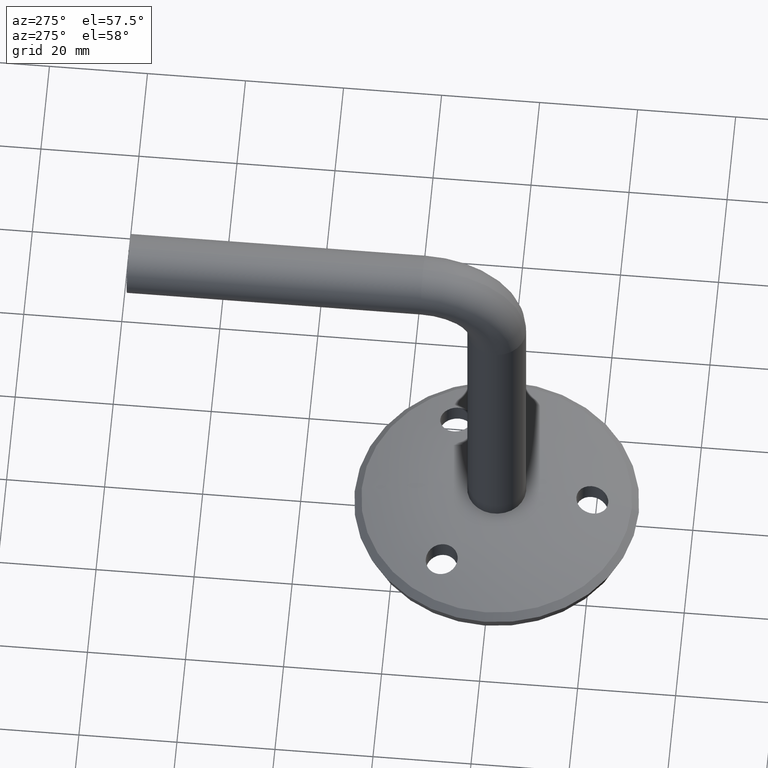
[diagram: clean part render]
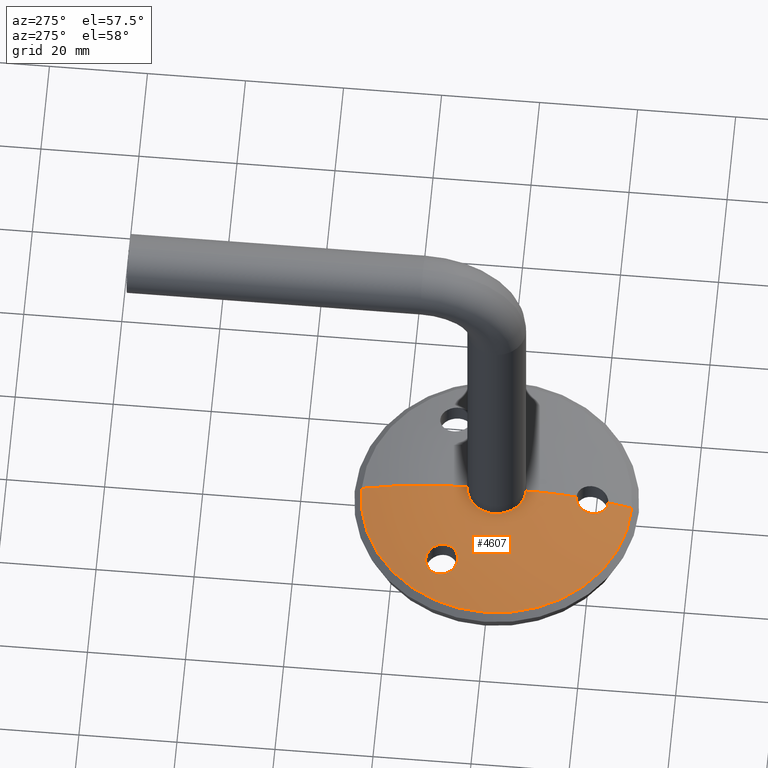
[diagram: same view with one face highlighted and labeled with its STEP entity id]
A machine part, auxiliary view. The second image highlights one B-rep face of the part: STEP entity #4607.
In plain terms, the highlighted toroidal blend (fillet) surface has major radius 5.25 mm and minor (blend) radius 70.5081 mm.
Its self-contained STEP definition (entity closure, byte-faithful):
#73 = CARTESIAN_POINT ( 'NONE',  ( -14.92076493267558313, 6.572789844037355778, -12.34597898326365595 ) ) ;
#559 = ORIENTED_EDGE ( 'NONE', *, *, #9891, .T. ) ;
#663 = CARTESIAN_POINT ( 'NONE',  ( -3.166677742492574055, 6.662795183297255619, 18.65648535947543607 ) ) ;
#739 = CARTESIAN_POINT ( 'NONE',  ( -17.93120958819713451, 5.969181775287405678, -12.83522427435549318 ) ) ;
#826 = CARTESIAN_POINT ( 'NONE',  ( -19.03625999361851484, 5.829979597320061657, -12.19788801209112705 ) ) ;
#873 = VERTEX_POINT ( 'NONE', #1020 ) ;
#898 = CARTESIAN_POINT ( 'NONE',  ( 3.373901931650957986E-15, 4.380627137030746354, 27.54999999999999716 ) ) ;
#960 = DIRECTION ( 'NONE',  ( -1.000000000000000000, 0.000000000000000000, 0.000000000000000000 ) ) ;
#966 = CARTESIAN_POINT ( 'NONE',  ( -16.88749537381466581, 6.146212153112459831, -12.99999999999999467 ) ) ;
#1011 = CARTESIAN_POINT ( 'NONE',  ( -13.75000288717430585, 6.949723699065288862, -10.62388374986598016 ) ) ;
#1020 = CARTESIAN_POINT ( 'NONE',  ( 1.992262963256047854E-15, 7.136656318735704829, 16.24999999999999645 ) ) ;
#1206 = CARTESIAN_POINT ( 'NONE',  ( -14.45827733477081445, 6.698212812521322057, -11.91922808120207300 ) ) ;
#1335 = B_SPLINE_CURVE_WITH_KNOTS ( 'NONE', 3,
 ( #4920, #1690, #6008, #12728, #5107, #7305, #8310, #6204, #3816, #5060, #11577, #12770, #6059, #9458, #13940, #6161, #13756, #1600, #663, #3954, #7123, #13890, #3860, #10479, #4969, #6104, #12814, #12620, #12675, #1551 ),
 .UNSPECIFIED., .F., .F.,
 ( 4, 2, 2, 2, 2, 2, 2, 2, 2, 2, 2, 2, 2, 2, 4 ),
 ( 0.01461833646250698324, 0.01525996222272465661, 0.01590158798294232997, 0.01654321374316000681, 0.01718483950337768018, 0.01782646526359535355, 0.01846809102381302692, 0.01910971678403070029, 0.01975134254424837713, 0.02103459406468373427, 0.02231784558511909142, 0.02295947134533677519, 0.02360109710555445550, 0.02424272286577213928, 0.02488434862598981959 ),
 .UNSPECIFIED. ) ;
#1354 = CARTESIAN_POINT ( 'NONE',  ( -13.79597766813787452, 7.125284141914178804, -8.724564337970335259 ) ) ;
#1441 = CARTESIAN_POINT ( 'NONE',  ( 2.008420750601658165E-15, 8.000000000000000000, 5.250000000000000000 ) ) ;
#1551 = CARTESIAN_POINT ( 'NONE',  ( 1.992262963256047854E-15, 7.136656318735704829, 16.24999999999999645 ) ) ;
#1600 = CARTESIAN_POINT ( 'NONE',  ( -3.250604130810204939, 6.575917868337124439, 19.08099595883461674 ) ) ;
#1690 = CARTESIAN_POINT ( 'NONE',  ( -0.2147862826052898411, 5.793744438677607356, 22.75000000000000711 ) ) ;
#1713 = AXIS2_PLACEMENT_3D ( 'NONE', #2620, #9157, #7845 ) ;
#1807 = CARTESIAN_POINT ( 'NONE',  ( -20.02467087558884629, 6.005396747237801591, -8.875025197481276606 ) ) ;
#1852 = CARTESIAN_POINT ( 'NONE',  ( -18.87099154800128176, 5.846498663725057554, -12.33334249040133024 ) ) ;
#1863 = CARTESIAN_POINT ( 'NONE',  ( 0.000000000000000000, 8.000000000000000000, -5.250000000000000000 ) ) ;
#2003 = DIRECTION ( 'NONE',  ( -0.000000000000000000, -1.000000000000000000, -0.000000000000000000 ) ) ;
#2253 = DIRECTION ( 'NONE',  ( -0.000000000000000000, -1.000000000000000000, -0.000000000000000000 ) ) ;
#2406 = B_SPLINE_CURVE_WITH_KNOTS ( 'NONE', 3,
 ( #6739, #12100, #6690, #13155, #6583, #9939, #9990, #73, #7846, #1206, #8948, #12148, #10943, #8755, #1011, #5486, #5528, #13254, #11281, #10283, #1354, #4577, #10086, #12469, #13457, #10140, #2411, #11389, #13504, #3457, #6888, #3558, #12286, #9152 ),
 .UNSPECIFIED., .F., .F.,
 ( 4, 2, 2, 2, 2, 2, 2, 2, 2, 2, 2, 2, 2, 2, 2, 2, 4 ),
 ( 0.002592582207815472689, 0.003234283589836495741, 0.003875984971857518360, 0.004517686353878540978, 0.005159387735899564030, 0.005801089117920587082, 0.006442790499941609267, 0.007084491881962632319, 0.007726193263983655371, 0.008367894646004677556, 0.009009596028025701475, 0.009651297410046723660, 0.01029299879206774238, 0.01093470017408876456, 0.01157640155610978501, 0.01221810293813080546, 0.01285980432015182591 ),
 .UNSPECIFIED. ) ;
#2411 = CARTESIAN_POINT ( 'NONE',  ( -14.90043892189490471, 7.091230476169230634, -7.169218788099881223 ) ) ;
#2620 = CARTESIAN_POINT ( 'NONE',  ( 6.429395695523604153E-16, -62.50805198092858461, 5.250000000000000000 ) ) ;
#2928 = CARTESIAN_POINT ( 'NONE',  ( -20.13938038033285238, 5.868821188330352712, -9.932309515252411458 ) ) ;
#3075 = DIRECTION ( 'NONE',  ( 0.000000000000000000, 0.000000000000000000, -1.000000000000000000 ) ) ;
#3213 = DIRECTION ( 'NONE',  ( -0.000000000000000000, -1.000000000000000000, -0.000000000000000000 ) ) ;
#3224 = DIRECTION ( 'NONE',  ( 0.000000000000000000, 0.000000000000000000, -1.000000000000000000 ) ) ;
#3240 = DIRECTION ( 'NONE',  ( 1.000000000000000000, 0.000000000000000000, -1.224646799147353207E-16 ) ) ;
#3295 = ORIENTED_EDGE ( 'NONE', *, *, #6918, .T. ) ;
#3335 = AXIS2_PLACEMENT_3D ( 'NONE', #13145, #3240, #8888 ) ;
#3457 = CARTESIAN_POINT ( 'NONE',  ( -15.84109508301126468, 6.982569746815600276, -6.665731233034376757 ) ) ;
#3500 = ORIENTED_EDGE ( 'NONE', *, *, #7177, .F. ) ;
#3558 = CARTESIAN_POINT ( 'NONE',  ( -16.46581134939877344, 6.890652708540771165, -6.520404047833941341 ) ) ;
#3592 = EDGE_CURVE ( 'NONE', #10246, #13115, #6559, .T. ) ;
#3816 = CARTESIAN_POINT ( 'NONE',  ( -2.159365237915294333, 5.971006935869962895, 21.93813012095986892 ) ) ;
#3860 = CARTESIAN_POINT ( 'NONE',  ( -1.994692732258120715, 7.007152888528025869, 16.92522485003031463 ) ) ;
#3932 = EDGE_LOOP ( 'NONE', ( #14394, #6018, #6037, #3500, #4492, #3295 ) ) ;
#3954 = CARTESIAN_POINT ( 'NONE',  ( -2.847666753398638395, 6.819799524599233109, 17.87822352490695366 ) ) ;
#3973 = CARTESIAN_POINT ( 'NONE',  ( -17.92734521113940005, 6.621507180969622652, -6.663615851072540508 ) ) ;
#4022 = CARTESIAN_POINT ( 'NONE',  ( -18.31783265609580269, 6.535477613177278933, -6.824048862705085483 ) ) ;
#4025 = CARTESIAN_POINT ( 'NONE',  ( 0.000000000000000000, 4.380627137030746354, -27.54999999999999716 ) ) ;
#4371 = VERTEX_POINT ( 'NONE', #1863 ) ;
#4492 = ORIENTED_EDGE ( 'NONE', *, *, #3592, .F. ) ;
#4567 = DIRECTION ( 'NONE',  ( 0.000000000000000000, 0.000000000000000000, -1.000000000000000000 ) ) ;
#4577 = CARTESIAN_POINT ( 'NONE',  ( -13.95855796168041074, 7.136466421701153529, -8.325105036408045223 ) ) ;
#4607 = ADVANCED_FACE ( 'NONE', ( #13649, #12590 ), #4670, .T. ) ;
#4670 = TOROIDAL_SURFACE ( 'NONE', #9429, 5.250000000000000000, 70.50805198092858461 ) ;
#4753 = VERTEX_POINT ( 'NONE', #6757 ) ;
#4920 = CARTESIAN_POINT ( 'NONE',  ( -4.609694209175250853E-14, 5.793744438677357778, 22.75000000000109779 ) ) ;
#4969 = CARTESIAN_POINT ( 'NONE',  ( -1.452592685227002800, 7.072825445408654765, 16.58481927285588142 ) ) ;
#5060 = CARTESIAN_POINT ( 'NONE',  ( -2.457469596971434633, 6.036106627857236617, 21.63733008620797449 ) ) ;
#5107 = CARTESIAN_POINT ( 'NONE',  ( -1.057431236929632590, 5.830921314657634191, 22.58055756177896001 ) ) ;
#5167 = CARTESIAN_POINT ( 'NONE',  ( -19.73738698471576569, 5.787608313314743569, -11.36976278019478137 ) ) ;
#5217 = CARTESIAN_POINT ( 'NONE',  ( -17.31208745922365111, 6.069546518262995960, -12.97913139807166338 ) ) ;
#5267 = CARTESIAN_POINT ( 'NONE',  ( -19.45595272687833699, 6.232001335927177976, -7.747591253170829972 ) ) ;
#5388 = DIRECTION ( 'NONE',  ( 0.000000000000000000, 0.000000000000000000, 1.000000000000000000 ) ) ;
#5486 = CARTESIAN_POINT ( 'NONE',  ( -13.66300674071431587, 7.004931552799104288, -10.20848115230000808 ) ) ;
#5528 = CARTESIAN_POINT ( 'NONE',  ( -13.63975360178866403, 7.029294195318215088, -9.997052937679622886 ) ) ;
#6008 = CARTESIAN_POINT ( 'NONE',  ( -0.4276443912627497235, 5.798377057814571245, 22.72891537535806350 ) ) ;
#6018 = ORIENTED_EDGE ( 'NONE', *, *, #6050, .T. ) ;
#6037 = ORIENTED_EDGE ( 'NONE', *, *, #8469, .T. ) ;
#6050 = EDGE_CURVE ( 'NONE', #12673, #4371, #8424, .T. ) ;
#6059 = CARTESIAN_POINT ( 'NONE',  ( -2.925324134352727867, 6.187612174745771298, 20.93161279124760199 ) ) ;
#6104 = CARTESIAN_POINT ( 'NONE',  ( -1.057765374599709096, 7.104450353168404675, 16.41950708597058295 ) ) ;
#6161 = CARTESIAN_POINT ( 'NONE',  ( -3.228880333792092383, 6.400380584981661514, 19.92519417397171821 ) ) ;
#6204 = CARTESIAN_POINT ( 'NONE',  ( -1.996075206246976874, 5.941531170650627303, 22.07379021109564832 ) ) ;
#6222 = CARTESIAN_POINT ( 'NONE',  ( -19.32121732681181570, 6.273960264196771774, -7.585603255210444651 ) ) ;
#6273 = CARTESIAN_POINT ( 'NONE',  ( -19.49469659803568788, 5.793339938569650016, -11.73805991380500835 ) ) ;
#6543 = CARTESIAN_POINT ( 'NONE',  ( -17.09808489436565182, 6.107172339728258237, -12.99999999999882760 ) ) ;
#6559 = CIRCLE ( 'NONE', #1713, 70.50805198092858461 ) ;
#6583 = CARTESIAN_POINT ( 'NONE',  ( -15.84895660917657878, 6.354479903823975206, -12.83671491261489450 ) ) ;
#6663 = EDGE_CURVE ( 'NONE', #4753, #10446, #11065, .T. ) ;
#6690 = CARTESIAN_POINT ( 'NONE',  ( -16.46751255589565943, 6.226057270874720828, -12.97973465348839284 ) ) ;
#6739 = CARTESIAN_POINT ( 'NONE',  ( -16.88749537381466581, 6.146212153112459831, -12.99999999999999467 ) ) ;
#6756 = CARTESIAN_POINT ( 'NONE',  ( -4.609694209175250853E-14, 5.793744438677357778, 22.75000000000109779 ) ) ;
#6757 = CARTESIAN_POINT ( 'NONE',  ( -16.88749537379636934, 6.820047322506161080, -6.499999999999994671 ) ) ;
#6779 = CIRCLE ( 'NONE', #3335, 70.50805198092858461 ) ;
#6888 = CARTESIAN_POINT ( 'NONE',  ( -16.04682561275656383, 6.953882947119673474, -6.603353883330276730 ) ) ;
#6918 = EDGE_CURVE ( 'NONE', #10246, #873, #1335, .T. ) ;
#7123 = CARTESIAN_POINT ( 'NONE',  ( -2.608203380103311098, 6.891792059849414009, 17.51523007573061008 ) ) ;
#7177 = EDGE_CURVE ( 'NONE', #13115, #7743, #10369, .T. ) ;
#7305 = CARTESIAN_POINT ( 'NONE',  ( -1.450980281421973661, 5.866942128745099794, 22.41593071508783552 ) ) ;
#7380 = CARTESIAN_POINT ( 'NONE',  ( -18.51666813087896202, 5.887671819744411117, -12.57023254774819243 ) ) ;
#7429 = CARTESIAN_POINT ( 'NONE',  ( -20.04061380268973735, 5.818140152859966108, -10.56636313066158905 ) ) ;
#7477 = CARTESIAN_POINT ( 'NONE',  ( -17.31286820643705937, 6.744107652333877212, -6.521071669316895303 ) ) ;
#7743 = VERTEX_POINT ( 'NONE', #4025 ) ;
#7845 = DIRECTION ( 'NONE',  ( -1.224646799147353207E-16, 0.000000000000000000, -1.000000000000000000 ) ) ;
#7846 = CARTESIAN_POINT ( 'NONE',  ( -14.75782553690170573, 6.615303192311229985, -12.21397182110996127 ) ) ;
#8310 = CARTESIAN_POINT ( 'NONE',  ( -1.639682916478672148, 5.889153065649447960, 22.31427649905507238 ) ) ;
#8381 = CARTESIAN_POINT ( 'NONE',  ( -17.09881123439759421, 6.783507548037593260, -6.499999999999981348 ) ) ;
#8423 = CARTESIAN_POINT ( 'NONE',  ( -19.79495921775694711, 6.112170120605252777, -8.282232662358389064 ) ) ;
#8424 = CIRCLE ( 'NONE', #11084, 5.250000000000000000 ) ;
#8469 = EDGE_CURVE ( 'NONE', #4371, #7743, #13748, .T. ) ;
#8573 = CARTESIAN_POINT ( 'NONE',  ( -18.32528665999805284, 5.912679359765666831, -12.67244835741151654 ) ) ;
#8755 = CARTESIAN_POINT ( 'NONE',  ( -13.81486742356634956, 6.918468249410281601, -10.83005343535915799 ) ) ;
#8888 = DIRECTION ( 'NONE',  ( -1.224646799147353207E-16, 0.000000000000000000, -1.000000000000000000 ) ) ;
#8891 = CARTESIAN_POINT ( 'NONE',  ( 0.000000000000000000, 4.380627137030746354, 0.000000000000000000 ) ) ;
#8948 = CARTESIAN_POINT ( 'NONE',  ( -14.32056523321980812, 6.738997915008046569, -11.75449133307809824 ) ) ;
#9152 = CARTESIAN_POINT ( 'NONE',  ( -16.88749537379636934, 6.820047322506161080, -6.499999999999994671 ) ) ;
#9157 = DIRECTION ( 'NONE',  ( 1.000000000000000000, 0.000000000000000000, -1.224646799147353207E-16 ) ) ;
#9262 = AXIS2_PLACEMENT_3D ( 'NONE', #13204, #960, #5388 ) ;
#9375 = EDGE_LOOP ( 'NONE', ( #559, #9833 ) ) ;
#9429 = AXIS2_PLACEMENT_3D ( 'NONE', #13175, #2003, #3224 ) ;
#9458 = CARTESIAN_POINT ( 'NONE',  ( -3.085899701944630813, 6.270600662289827376, 20.54127782297921101 ) ) ;
#9572 = CARTESIAN_POINT ( 'NONE',  ( -20.13531521472196317, 5.916116254931264251, -9.505747802510539302 ) ) ;
#9617 = CARTESIAN_POINT ( 'NONE',  ( -17.72854553966203284, 6.000599053151609574, -12.89645874651445112 ) ) ;
#9833 = ORIENTED_EDGE ( 'NONE', *, *, #6663, .T. ) ;
#9891 = EDGE_CURVE ( 'NONE', #10446, #4753, #2406, .T. ) ;
#9939 = CARTESIAN_POINT ( 'NONE',  ( -15.46132909030571234, 6.441415955272104199, -12.67786978009806198 ) ) ;
#9990 = CARTESIAN_POINT ( 'NONE',  ( -15.27340801719645569, 6.485603780500401427, -12.57875547102293901 ) ) ;
#10086 = CARTESIAN_POINT ( 'NONE',  ( -14.05851392103360098, 7.137988452540676931, -8.135887197430719198 ) ) ;
#10140 = CARTESIAN_POINT ( 'NONE',  ( -14.73556990176859571, 7.105502245658629867, -7.305091757412469633 ) ) ;
#10246 = VERTEX_POINT ( 'NONE', #6756 ) ;
#10283 = CARTESIAN_POINT ( 'NONE',  ( -13.73468939490379803, 7.115596454264380810, -8.932766339349933915 ) ) ;
#10369 = CIRCLE ( 'NONE', #11282, 27.54999999999999716 ) ;
#10446 = VERTEX_POINT ( 'NONE', #966 ) ;
#10479 = CARTESIAN_POINT ( 'NONE',  ( -1.639976476496086688, 7.053406407040822224, 16.68597382287154218 ) ) ;
#10592 = CARTESIAN_POINT ( 'NONE',  ( -16.88749537379636934, 6.820047322506161080, -6.499999999999994671 ) ) ;
#10643 = CARTESIAN_POINT ( 'NONE',  ( -17.72634066487190552, 6.663224371610320773, -6.603055642519666257 ) ) ;
#10691 = CARTESIAN_POINT ( 'NONE',  ( -20.12060868951598636, 5.849173073577747850, -10.14443995163661327 ) ) ;
#10943 = CARTESIAN_POINT ( 'NONE',  ( -13.98145540347557514, 6.851296440063799231, -11.22054059266102044 ) ) ;
#11065 = B_SPLINE_CURVE_WITH_KNOTS ( 'NONE', 3,
 ( #10592, #8381, #7477, #10643, #3973, #4022, #12834, #12883, #12789, #6222, #5267, #12979, #8423, #14099, #1807, #13909, #9572, #2928, #10691, #7429, #11784, #5167, #6273, #826, #1852, #7380, #8573, #739, #9617, #5217, #6543, #11926 ),
 .UNSPECIFIED., .F., .F.,
 ( 4, 2, 2, 2, 2, 2, 2, 2, 2, 2, 2, 2, 2, 2, 2, 4 ),
 ( 0.01285980432015182591, 0.01350162197774808573, 0.01414343963534434381, 0.01478525729294060190, 0.01542707495053686172, 0.01606889260813312154, 0.01671071026572937962, 0.01735252792332564464, 0.01799434558092190273, 0.01863616323851816428, 0.01927798089611442584, 0.02056161621130695241, 0.02120343386890321397, 0.02184525152649947205, 0.02248706918409572666, 0.02312888684169198475 ),
 .UNSPECIFIED. ) ;
#11084 = AXIS2_PLACEMENT_3D ( 'NONE', #12061, #3213, #3075 ) ;
#11281 = CARTESIAN_POINT ( 'NONE',  ( -13.65488840670230708, 7.088774160865691343, -9.352119876174844748 ) ) ;
#11282 = AXIS2_PLACEMENT_3D ( 'NONE', #8891, #2253, #4567 ) ;
#11389 = CARTESIAN_POINT ( 'NONE',  ( -15.25812621377190936, 7.054774012848352704, -6.929719668702913893 ) ) ;
#11577 = CARTESIAN_POINT ( 'NONE',  ( -2.593388006157324899, 6.072163381908345592, 21.47017190076257975 ) ) ;
#11784 = CARTESIAN_POINT ( 'NONE',  ( -19.97894916327802051, 5.806936702507370818, -10.77526429861947221 ) ) ;
#11926 = CARTESIAN_POINT ( 'NONE',  ( -16.88749537381466581, 6.146212153112459831, -12.99999999999999467 ) ) ;
#12061 = CARTESIAN_POINT ( 'NONE',  ( 0.000000000000000000, 8.000000000000000000, 0.000000000000000000 ) ) ;
#12100 = CARTESIAN_POINT ( 'NONE',  ( -16.67694400493705587, 6.185244893807517741, -13.00000000000117417 ) ) ;
#12148 = CARTESIAN_POINT ( 'NONE',  ( -14.08270271650012617, 6.815417133955788742, -11.40537125762248039 ) ) ;
#12286 = CARTESIAN_POINT ( 'NONE',  ( -16.67621779645669022, 6.856580477207796065, -6.500000000000007994 ) ) ;
#12469 = CARTESIAN_POINT ( 'NONE',  ( -14.29515235397840200, 7.133048369787571730, -7.778134419618078610 ) ) ;
#12542 = EDGE_CURVE ( 'NONE', #12673, #873, #6779, .T. ) ;
#12590 = FACE_BOUND ( 'NONE', #9375, .T. ) ;
#12620 = CARTESIAN_POINT ( 'NONE',  ( -0.4291873334340429169, 7.132612528802857454, 16.27136015215624099 ) ) ;
#12673 = VERTEX_POINT ( 'NONE', #1441 ) ;
#12675 = CARTESIAN_POINT ( 'NONE',  ( -0.2161994990050964960, 7.136656318735712823, 16.24999999999999289 ) ) ;
#12728 = CARTESIAN_POINT ( 'NONE',  ( -0.8494870458024148530, 5.816924342189370378, 22.64438324407443304 ) ) ;
#12770 = CARTESIAN_POINT ( 'NONE',  ( -2.826873719888854719, 6.147892731092166052, 21.11741263777578936 ) ) ;
#12789 = CARTESIAN_POINT ( 'NONE',  ( -19.01880885926125586, 6.360689461337947215, -7.287253841720520597 ) ) ;
#12814 = CARTESIAN_POINT ( 'NONE',  ( -0.8489279095186406110, 7.116619733217722121, 16.35553845011500584 ) ) ;
#12834 = CARTESIAN_POINT ( 'NONE',  ( -18.50614984915462813, 6.491359127835187870, -6.923986326316278195 ) ) ;
#12883 = CARTESIAN_POINT ( 'NONE',  ( -18.85560455139376401, 6.404187595965683322, -7.155208705983906903 ) ) ;
#12979 = CARTESIAN_POINT ( 'NONE',  ( -19.69232514340022178, 6.151313508692281218, -8.094843231738192202 ) ) ;
#13115 = VERTEX_POINT ( 'NONE', #898 ) ;
#13145 = CARTESIAN_POINT ( 'NONE',  ( 6.429395695523604153E-16, -62.50805198092858461, 5.250000000000000000 ) ) ;
#13155 = CARTESIAN_POINT ( 'NONE',  ( -16.05092105123902968, 6.311199432665163478, -12.89765228418152532 ) ) ;
#13175 = CARTESIAN_POINT ( 'NONE',  ( 0.000000000000000000, -62.50805198092858461, 0.000000000000000000 ) ) ;
#13204 = CARTESIAN_POINT ( 'NONE',  ( 0.000000000000000000, -62.50805198092858461, -5.250000000000000000 ) ) ;
#13254 = CARTESIAN_POINT ( 'NONE',  ( -13.63554723584043060, 7.071473833728807001, -9.566437804260287336 ) ) ;
#13457 = CARTESIAN_POINT ( 'NONE',  ( -14.43336921041712273, 7.126429179213712217, -7.608592909778308488 ) ) ;
#13504 = CARTESIAN_POINT ( 'NONE',  ( -15.44834657022301094, 7.032808200617978400, -6.828267959478819371 ) ) ;
#13649 = FACE_OUTER_BOUND ( 'NONE', #3932, .T. ) ;
#13748 = CIRCLE ( 'NONE', #9262, 70.50805198092858461 ) ;
#13756 = CARTESIAN_POINT ( 'NONE',  ( -3.249692923267132105, 6.443997527936556224, 19.71649204351626139 ) ) ;
#13890 = CARTESIAN_POINT ( 'NONE',  ( -2.161157074928252708, 6.980287501452429488, 17.06344829142612340 ) ) ;
#13909 = CARTESIAN_POINT ( 'NONE',  ( -20.11175787295643147, 5.944038107920170511, -9.290019162790699170 ) ) ;
#13940 = CARTESIAN_POINT ( 'NONE',  ( -3.147483796427492209, 6.313905140032782803, 20.33654291387544433 ) ) ;
#14099 = CARTESIAN_POINT ( 'NONE',  ( -19.96137476404623357, 6.039042660600626888, -8.673453458701036567 ) ) ;
#14394 = ORIENTED_EDGE ( 'NONE', *, *, #12542, .F. ) ;